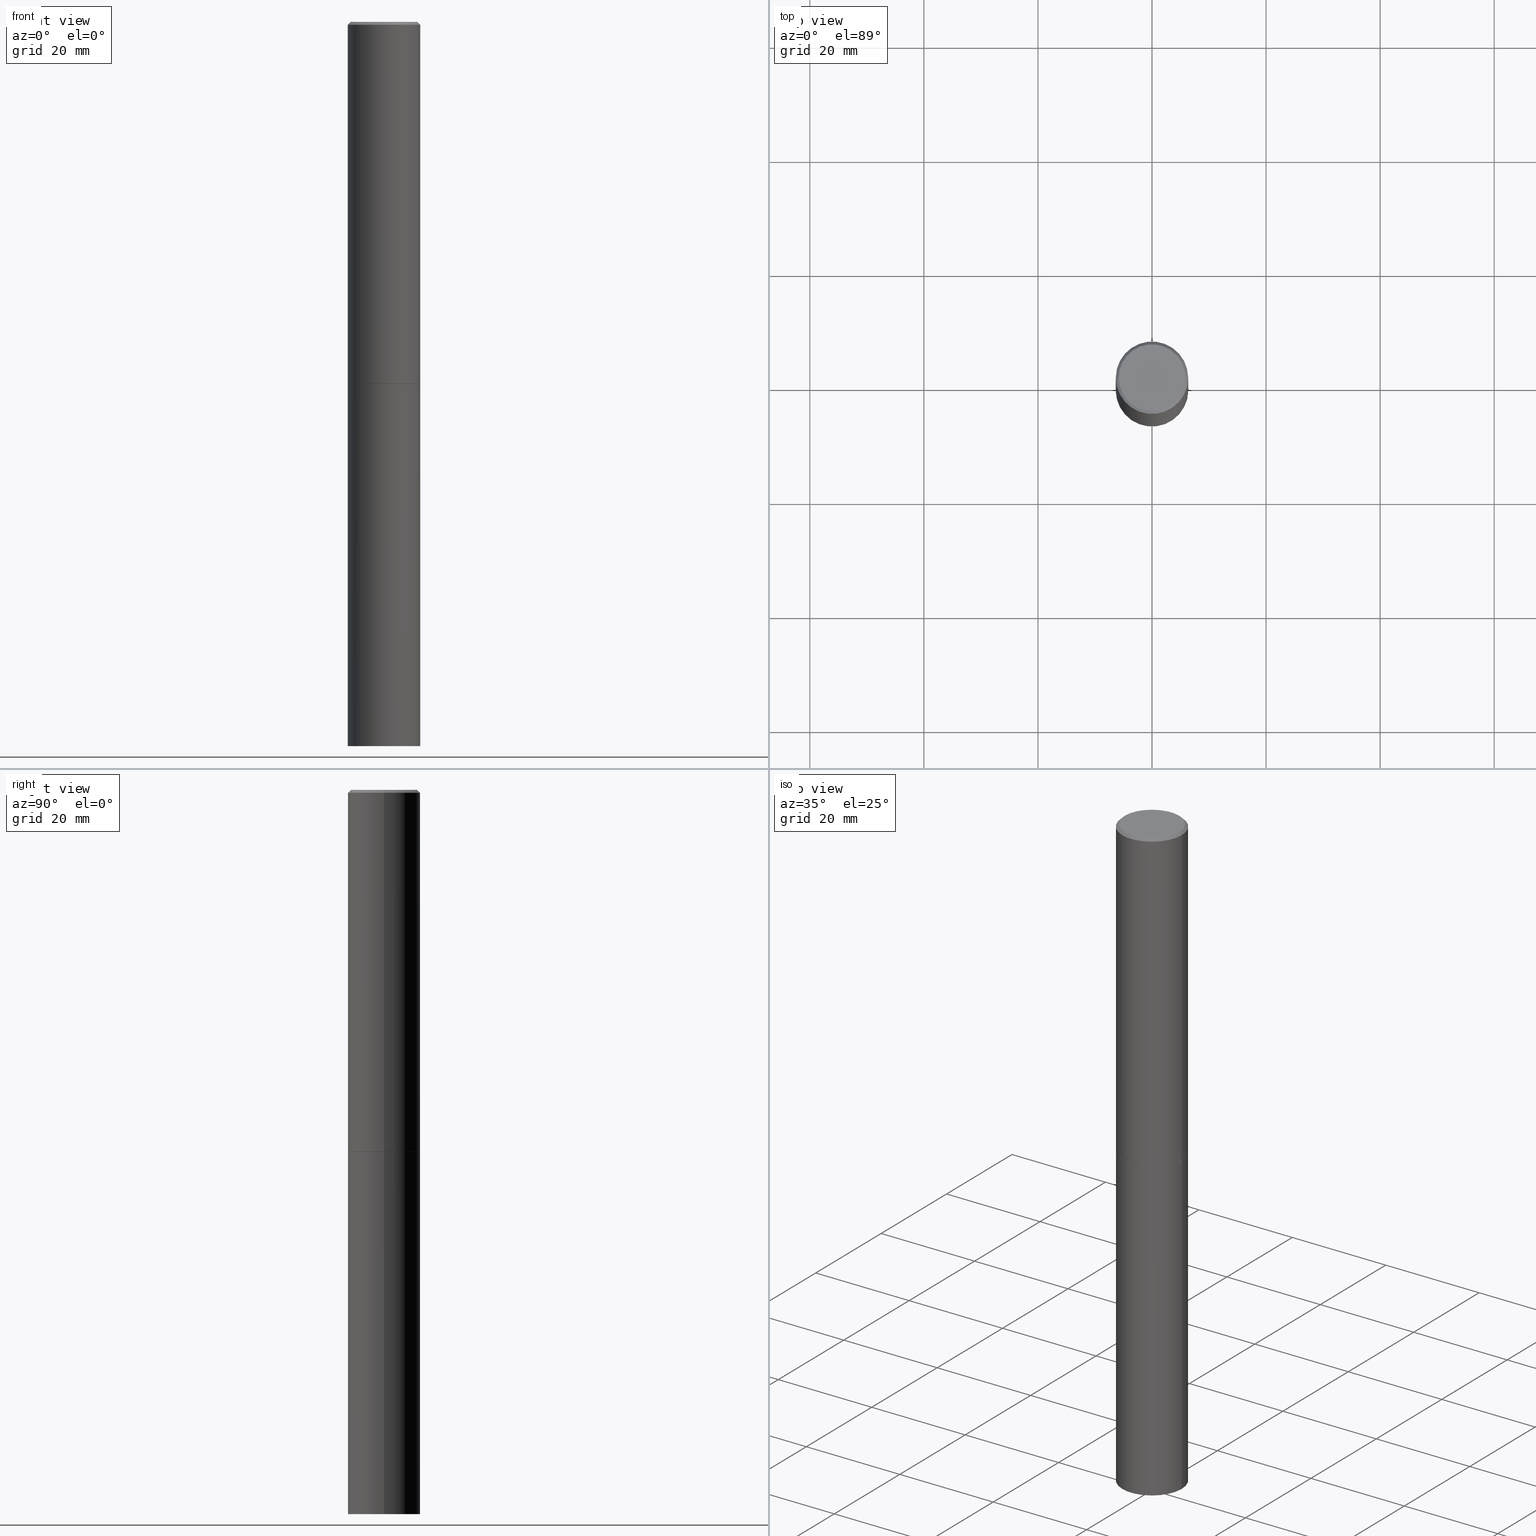
[diagram: canonical four-view strip — front | top / right | iso, engineering-drawing reading convention]
A machine part, canonical four-view strip (front | top / right | iso — engineering-drawing reading convention). The complete STEP part file that produces these views, byte-faithful:
ISO-10303-21;
HEADER;
FILE_DESCRIPTION (( 'STEP AP203' ),
    '1' );
FILE_NAME ('34832.STEP',
    '2024-02-27T17:50:39',
    ( '' ),
    ( '' ),
    'SwSTEP 2.0',
    'SolidWorks 2023',
    '' );
FILE_SCHEMA (( 'CONFIG_CONTROL_DESIGN' ));
ENDSEC;

DATA;
#1 = LINE ( 'NONE', #81, #94 ) ;
#2 = DIRECTION ( 'NONE',  ( 1.000000000000000000, -6.982962677686266711E-15, 4.876225828469315047E-29 ) ) ;
#3 = DIRECTION ( 'NONE',  ( 1.000000000000000000, -6.982962677686262766E-15, 0.000000000000000000 ) ) ;
#4 = CIRCLE ( 'NONE', #336, 0.2499999999999997224 ) ;
#5 = DIRECTION ( 'NONE',  ( -2.445468806185136597E-29, 3.491481338843145583E-15, 1.000000000000000000 ) ) ;
#6 = CARTESIAN_POINT ( 'NONE',  ( 6.113672015462842613E-29, -8.728703347107864943E-15, -2.500000000000000000 ) ) ;
#7 = ADVANCED_FACE ( 'NONE', ( #217 ), #15, .T. ) ;
#8 = FACE_OUTER_BOUND ( 'NONE', #43, .T. ) ;
#9 = DIRECTION ( 'NONE',  ( -2.445468806185136597E-29, 3.491481338843145583E-15, 1.000000000000000000 ) ) ;
#10 = PERSON_AND_ORGANIZATION ( #101, #137 ) ;
#11 = EDGE_CURVE ( 'NONE', #13, #213, #365, .T. ) ;
#12 = VERTEX_POINT ( 'NONE', #16 ) ;
#13 = VERTEX_POINT ( 'NONE', #22 ) ;
#14 = DIRECTION ( 'NONE',  ( 0.000000000000000000, 0.000000000000000000, 1.000000000000000000 ) ) ;
#15 = CONICAL_SURFACE ( 'NONE', #360, 0.2499999999999997224, 0.7853981633974473908 ) ;
#16 = CARTESIAN_POINT ( 'NONE',  ( -0.2499999999999997224, 1.675911042644701605E-15, -0.02000000000000005593 ) ) ;
#17 = LOCAL_TIME ( 12, 50, 39.00000000000000000, #219 ) ;
#18 = PERSON_AND_ORGANIZATION ( #101, #137 ) ;
#19 = DIRECTION ( 'NONE',  ( -2.445468806185136597E-29, 3.491481338843145583E-15, 1.000000000000000000 ) ) ;
#20 = PERSON_AND_ORGANIZATION ( #101, #137 ) ;
#21 = ORIENTED_EDGE ( 'NONE', *, *, #312, .F. ) ;
#22 = CARTESIAN_POINT ( 'NONE',  ( 0.2500000000000000000, -1.047095253519058861E-14, -2.499000000000000110 ) ) ;
#23 = FACE_OUTER_BOUND ( 'NONE', #196, .T. ) ;
#24 = DIRECTION ( 'NONE',  ( -1.000000000000000000, 6.982962677686265922E-15, -4.876176775795935793E-29 ) ) ;
#25 = DIRECTION ( 'NONE',  ( 1.000000000000000000, -6.982962677686266711E-15, 4.876176775795935793E-29 ) ) ;
#26 = VERTEX_POINT ( 'NONE', #359 ) ;
#27 = DIRECTION ( 'NONE',  ( 1.000000000000000000, -6.982962677686262766E-15, 0.000000000000000000 ) ) ;
#28 = ADVANCED_BREP_SHAPE_REPRESENTATION ( '34832', ( #105, #346, #30 ), #145 ) ;
#29 = CARTESIAN_POINT ( 'NONE',  ( 0.000000000000000000, 0.000000000000000000, 0.000000000000000000 ) ) ;
#30 = AXIS2_PLACEMENT_3D ( 'NONE', #143, #14, #326 ) ;
#31 = CARTESIAN_POINT ( 'NONE',  ( 0.2500000000000000000, -1.745740669421566678E-15, 1.219044193948983948E-29 ) ) ;
#32 = ADVANCED_FACE ( 'NONE', ( #220 ), #126, .T. ) ;
#33 = EDGE_LOOP ( 'NONE', ( #181, #52, #69, #309 ) ) ;
#34 = EDGE_CURVE ( 'NONE', #73, #54, #215, .T. ) ;
#35 = AXIS2_PLACEMENT_3D ( 'NONE', #307, #226, #194 ) ;
#36 = DIRECTION ( 'NONE',  ( -2.445468806185136597E-29, 3.491481338843145583E-15, 1.000000000000000000 ) ) ;
#37 = LOCAL_TIME ( 12, 50, 39.00000000000000000, #185 ) ;
#38 = VERTEX_POINT ( 'NONE', #331 ) ;
#39 = APPROVAL_DATE_TIME ( #233, #109 ) ;
#40 = VERTEX_POINT ( 'NONE', #189 ) ;
#41 = PERSON_AND_ORGANIZATION_ROLE ( 'classification_officer' ) ;
#42 = AXIS2_PLACEMENT_3D ( 'NONE', #110, #140, #338 ) ;
#43 = EDGE_LOOP ( 'NONE', ( #349, #264, #321, #46 ) ) ;
#44 = PERSON_AND_ORGANIZATION ( #101, #137 ) ;
#45 = EDGE_LOOP ( 'NONE', ( #172, #296, #290, #71 ) ) ;
#46 = ORIENTED_EDGE ( 'NONE', *, *, #337, .F. ) ;
#47 = ADVANCED_FACE ( 'NONE', ( #303 ), #243, .F. ) ;
#48 = CYLINDRICAL_SURFACE ( 'NONE', #235, 0.2500000000000000000 ) ;
#49 = CIRCLE ( 'NONE', #75, 0.2500000000000000000 ) ;
#50 = CARTESIAN_POINT ( 'NONE',  ( 0.2299999999999997047, -1.681434332853597236E-15, 4.268512490111905999E-18 ) ) ;
#51 = CARTESIAN_POINT ( 'NONE',  ( 1.745740669421688754E-15, 0.2499999999999825417, -5.000000000000000888 ) ) ;
#52 = ORIENTED_EDGE ( 'NONE', *, *, #337, .T. ) ;
#53 = CARTESIAN_POINT ( 'NONE',  ( -1.043851414335219820E-46, 1.490343170380447200E-32, 4.268512490100411279E-18 ) ) ;
#54 = VERTEX_POINT ( 'NONE', #363 ) ;
#55 = DIRECTION ( 'NONE',  ( 1.000000000000000000, -6.982962677686266711E-15, 4.876176775795935793E-29 ) ) ;
#56 = DIRECTION ( 'NONE',  ( -2.445468806185136597E-29, 3.491481338843145583E-15, 1.000000000000000000 ) ) ;
#57 = EDGE_CURVE ( 'NONE', #13, #38, #1, .T. ) ;
#58 = DIRECTION ( 'NONE',  ( -2.445468806185136597E-29, 3.491481338843145583E-15, 1.000000000000000000 ) ) ;
#59 = CONICAL_SURFACE ( 'NONE', #125, 0.2489999999999999991, 0.7853981633975507526 ) ;
#60 = VECTOR ( 'NONE', #206, 39.37007874015748143 ) ;
#61 = LINE ( 'NONE', #319, #256 ) ;
#62 = CARTESIAN_POINT ( 'NONE',  ( 0.2500000000000000000, -1.920314736363729656E-14, -5.000000000000000000 ) ) ;
#63 = ORIENTED_EDGE ( 'NONE', *, *, #253, .T. ) ;
#64 = PLANE ( 'NONE',  #164 ) ;
#65 = EDGE_LOOP ( 'NONE', ( #148, #231, #240, #93 ) ) ;
#66 = CIRCLE ( 'NONE', #298, 0.2500000000000000000 ) ;
#67 = PERSON_AND_ORGANIZATION ( #101, #137 ) ;
#68 = LOCAL_TIME ( 12, 50, 39.00000000000000000, #352 ) ;
#69 = ORIENTED_EDGE ( 'NONE', *, *, #57, .T. ) ;
#70 = COORDINATED_UNIVERSAL_TIME_OFFSET ( 5, 0, .BEHIND. ) ;
#71 = ORIENTED_EDGE ( 'NONE', *, *, #209, .T. ) ;
#72 = APPROVAL ( #214, 'UNSPECIFIED' ) ;
#73 = VERTEX_POINT ( 'NONE', #85 ) ;
#74 = AXIS2_PLACEMENT_3D ( 'NONE', #221, #249, #2 ) ;
#75 = AXIS2_PLACEMENT_3D ( 'NONE', #288, #58, #173 ) ;
#76 = ORIENTED_EDGE ( 'NONE', *, *, #317, .T. ) ;
#77 = PERSON_AND_ORGANIZATION_ROLE ( 'design_owner' ) ;
#78 = CARTESIAN_POINT ( 'NONE',  ( 6.111226546656657010E-29, -8.725211865769021935E-15, -2.499000000000000110 ) ) ;
#79 = EDGE_CURVE ( 'NONE', #40, #54, #342, .T. ) ;
#80 = DIRECTION ( 'NONE',  ( 0.7071067811866199593, -2.468850131083015945E-15, 0.7071067811864750752 ) ) ;
#81 = CARTESIAN_POINT ( 'NONE',  ( 0.2499999999999998612, -1.745740669421565692E-15, 1.219044193948983248E-29 ) ) ;
#82 = VECTOR ( 'NONE', #80, 39.37007874015748143 ) ;
#83 = CC_DESIGN_SECURITY_CLASSIFICATION ( #322, ( #257 ) ) ;
#84 = CARTESIAN_POINT ( 'NONE',  ( 0.000000000000000000, 0.000000000000000000, 0.000000000000000000 ) ) ;
#85 = CARTESIAN_POINT ( 'NONE',  ( -0.2500000000000000000, -1.131669818126154695E-14, -5.000000000000000000 ) ) ;
#86 = ORIENTED_EDGE ( 'NONE', *, *, #222, .T. ) ;
#87 = CARTESIAN_POINT ( 'NONE',  ( 1.606081415867839095E-15, 0.2299999999999997047, -8.009064516888722925E-16 ) ) ;
#88 = AXIS2_PLACEMENT_3D ( 'NONE', #245, #135, #161 ) ;
#89 = DIRECTION ( 'NONE',  ( 1.000000000000000000, -6.982962677686270655E-15, 0.000000000000000000 ) ) ;
#90 = DIRECTION ( 'NONE',  ( 1.000000000000000000, -6.982962677686262766E-15, 0.000000000000000000 ) ) ;
#91 =( LENGTH_UNIT ( ) NAMED_UNIT ( * ) SI_UNIT ( $, .METRE. ) );
#92 =( NAMED_UNIT ( * ) SI_UNIT ( $, .STERADIAN. ) SOLID_ANGLE_UNIT ( ) );
#93 = ORIENTED_EDGE ( 'NONE', *, *, #187, .F. ) ;
#94 = VECTOR ( 'NONE', #305, 39.37007874015748143 ) ;
#95 = EDGE_LOOP ( 'NONE', ( #198, #120, #165, #167 ) ) ;
#96 = EDGE_CURVE ( 'NONE', #26, #12, #306, .T. ) ;
#97 = SHAPE_DEFINITION_REPRESENTATION ( #276, #28 ) ;
#98 = ORIENTED_EDGE ( 'NONE', *, *, #332, .T. ) ;
#99 = DATE_AND_TIME ( #121, #273 ) ;
#100 = ORIENTED_EDGE ( 'NONE', *, *, #123, .T. ) ;
#101 = PERSON ( 'UNSPECIFIED', 'UNSPECIFIED', 'UNSPECIFIED', ('UNSPECIFIED'), ('UNSPECIFIED'), ('UNSPECIFIED') ) ;
#102 = CIRCLE ( 'NONE', #184, 0.2500000000000000000 ) ;
#103 = EDGE_LOOP ( 'NONE', ( #21, #149 ) ) ;
#104 = CARTESIAN_POINT ( 'NONE',  ( -0.2499999999999999722, -2.621163906872689391E-15, -2.499000000000000110 ) ) ;
#105 = MANIFOLD_SOLID_BREP ( 'Body-Move/Copy2[1]', #150 ) ;
#106 = LINE ( 'NONE', #277, #82 ) ;
#107 = FACE_OUTER_BOUND ( 'NONE', #95, .T. ) ;
#108 = CIRCLE ( 'NONE', #88, 0.2499999999999997224 ) ;
#109 = APPROVAL ( #294, 'UNSPECIFIED' ) ;
#110 = CARTESIAN_POINT ( 'NONE',  ( 4.890937612370287172E-31, -6.982962677686310098E-17, -0.02000000000000005593 ) ) ;
#111 = DIRECTION ( 'NONE',  ( -0.7071067811865469066, 2.468850131082250355E-15, -0.7071067811865481278 ) ) ;
#112 = CC_DESIGN_PERSON_AND_ORGANIZATION_ASSIGNMENT ( #10, #153, ( #257 ) ) ;
#113 = VECTOR ( 'NONE', #334, 39.37007874015748143 ) ;
#114 = DIRECTION ( 'NONE',  ( 1.000000000000000000, -6.982962677686266711E-15, 0.000000000000000000 ) ) ;
#115 = DIMENSIONAL_EXPONENTS ( 1.000000000000000000, 0.000000000000000000, 0.000000000000000000, 0.000000000000000000, 0.000000000000000000, 0.000000000000000000, 0.000000000000000000 ) ;
#116 = FACE_OUTER_BOUND ( 'NONE', #103, .T. ) ;
#117 = VECTOR ( 'NONE', #297, 39.37007874015748143 ) ;
#118 = APPROVAL_PERSON_ORGANIZATION ( #20, #155, #124 ) ;
#119 = DATE_TIME_ROLE ( 'classification_date' ) ;
#120 = ORIENTED_EDGE ( 'NONE', *, *, #284, .T. ) ;
#121 = CALENDAR_DATE ( 2024, 27, 2 ) ;
#122 = ORIENTED_EDGE ( 'NONE', *, *, #34, .T. ) ;
#123 = EDGE_CURVE ( 'NONE', #26, #130, #141, .T. ) ;
#124 = APPROVAL_ROLE ( '' ) ;
#125 = AXIS2_PLACEMENT_3D ( 'NONE', #347, #9, #229 ) ;
#126 = CYLINDRICAL_SURFACE ( 'NONE', #353, 0.2500000000000000000 ) ;
#127 = CALENDAR_DATE ( 2024, 27, 2 ) ;
#128 = VERTEX_POINT ( 'NONE', #274 ) ;
#129 = APPROVAL_ROLE ( '' ) ;
#130 = VERTEX_POINT ( 'NONE', #50 ) ;
#131 = ORIENTED_EDGE ( 'NONE', *, *, #222, .F. ) ;
#132 = DIRECTION ( 'NONE',  ( 2.438088387897960049E-29, -3.491481338843145188E-15, -1.000000000000000000 ) ) ;
#133 = FACE_OUTER_BOUND ( 'NONE', #318, .T. ) ;
#134 = CC_DESIGN_DATE_AND_TIME_ASSIGNMENT ( #263, #237, ( #266 ) ) ;
#135 = DIRECTION ( 'NONE',  ( -2.445468806185136597E-29, 3.491481338843145583E-15, 1.000000000000000000 ) ) ;
#136 = CIRCLE ( 'NONE', #74, 0.2299999999999997047 ) ;
#137 = ORGANIZATION ( 'UNSPECIFIED', 'UNSPECIFIED', '' ) ;
#138 = CARTESIAN_POINT ( 'NONE',  ( -0.2489999999999999991, -6.959451935065215486E-15, -2.500000000000000000 ) ) ;
#139 = ADVANCED_FACE ( 'NONE', ( #23 ), #163, .T. ) ;
#140 = DIRECTION ( 'NONE',  ( 2.445468806185136597E-29, -3.491481338843145583E-15, -1.000000000000000000 ) ) ;
#141 = CIRCLE ( 'NONE', #287, 0.2299999999999997047 ) ;
#142 = CARTESIAN_POINT ( 'NONE',  ( 6.113672015462842613E-29, -8.728703347107864943E-15, -2.500000000000000000 ) ) ;
#143 = CARTESIAN_POINT ( 'NONE',  ( 0.000000000000000000, 0.000000000000000000, 0.000000000000000000 ) ) ;
#144 = ADVANCED_FACE ( 'NONE', ( #224 ), #272, .T. ) ;
#145 =( GEOMETRIC_REPRESENTATION_CONTEXT ( 3 ) GLOBAL_UNCERTAINTY_ASSIGNED_CONTEXT ( ( #190 ) ) GLOBAL_UNIT_ASSIGNED_CONTEXT ( ( #285, #315, #92 ) ) REPRESENTATION_CONTEXT ( 'NONE', 'WORKASPACE' ) );
#146 = PERSON_AND_ORGANIZATION ( #101, #137 ) ;
#147 = PERSON_AND_ORGANIZATION ( #101, #137 ) ;
#148 = ORIENTED_EDGE ( 'NONE', *, *, #312, .T. ) ;
#149 = ORIENTED_EDGE ( 'NONE', *, *, #192, .F. ) ;
#150 = CLOSED_SHELL ( 'NONE', ( #176, #139, #47, #32 ) ) ;
#151 = APPROVAL_ROLE ( '' ) ;
#152 = ORIENTED_EDGE ( 'NONE', *, *, #79, .F. ) ;
#153 = PERSON_AND_ORGANIZATION_ROLE ( 'design_supplier' ) ;
#154 = DIRECTION ( 'NONE',  ( 1.000000000000000000, -6.982962677686266711E-15, 4.876176775795935793E-29 ) ) ;
#155 = APPROVAL ( #182, 'UNSPECIFIED' ) ;
#156 = ORIENTED_EDGE ( 'NONE', *, *, #295, .T. ) ;
#157 = CIRCLE ( 'NONE', #348, 0.2489999999999999991 ) ;
#158 = DIRECTION ( 'NONE',  ( -2.445468806185136597E-29, 3.491481338843145583E-15, 1.000000000000000000 ) ) ;
#159 = DESIGN_CONTEXT ( 'detailed design', #179, 'design' ) ;
#160 = CARTESIAN_POINT ( 'NONE',  ( 6.113672015462842613E-29, -8.728703347107864943E-15, -2.500000000000000000 ) ) ;
#161 = DIRECTION ( 'NONE',  ( 1.000000000000000000, -6.982962677686266711E-15, 0.000000000000000000 ) ) ;
#162 = ORIENTED_EDGE ( 'NONE', *, *, #341, .T. ) ;
#163 = PLANE ( 'NONE',  #227 ) ;
#164 = AXIS2_PLACEMENT_3D ( 'NONE', #6, #345, #251 ) ;
#165 = ORIENTED_EDGE ( 'NONE', *, *, #295, .F. ) ;
#166 = FACE_OUTER_BOUND ( 'NONE', #33, .T. ) ;
#167 = ORIENTED_EDGE ( 'NONE', *, *, #57, .F. ) ;
#168 = LINE ( 'NONE', #31, #193 ) ;
#169 = DIRECTION ( 'NONE',  ( -2.445468806185136597E-29, 3.491481338843145583E-15, 1.000000000000000000 ) ) ;
#170 = CC_DESIGN_DATE_AND_TIME_ASSIGNMENT ( #292, #119, ( #322 ) ) ;
#171 = DIRECTION ( 'NONE',  ( -2.445468806185136877E-29, 3.491481338843145188E-15, 1.000000000000000000 ) ) ;
#172 = ORIENTED_EDGE ( 'NONE', *, *, #332, .F. ) ;
#173 = DIRECTION ( 'NONE',  ( 1.000000000000000000, -6.982962677686266711E-15, 0.000000000000000000 ) ) ;
#174 = VECTOR ( 'NONE', #111, 39.37007874015748143 ) ;
#175 = AXIS2_PLACEMENT_3D ( 'NONE', #142, #36, #3 ) ;
#176 = ADVANCED_FACE ( 'NONE', ( #133 ), #48, .T. ) ;
#177 = CALENDAR_DATE ( 2024, 27, 2 ) ;
#178 = ORIENTED_EDGE ( 'NONE', *, *, #79, .T. ) ;
#179 = APPLICATION_CONTEXT ( 'configuration controlled 3d designs of mechanical parts and assemblies' ) ;
#180 = APPLICATION_PROTOCOL_DEFINITION ( 'international standard', 'config_control_design', 1994, #179 ) ;
#181 = ORIENTED_EDGE ( 'NONE', *, *, #284, .F. ) ;
#182 = APPROVAL_STATUS ( 'not_yet_approved' ) ;
#183 = CARTESIAN_POINT ( 'NONE',  ( -0.2500000000000000000, 1.776356839400250465E-15, -1.229733772563726445E-29 ) ) ;
#184 = AXIS2_PLACEMENT_3D ( 'NONE', #228, #169, #114 ) ;
#185 = COORDINATED_UNIVERSAL_TIME_OFFSET ( 5, 0, .BEHIND. ) ;
#186 = DIRECTION ( 'NONE',  ( -2.445468806185136597E-29, 3.491481338843145583E-15, 1.000000000000000000 ) ) ;
#187 = EDGE_CURVE ( 'NONE', #293, #13, #106, .T. ) ;
#188 = CALENDAR_DATE ( 2024, 27, 2 ) ;
#189 = CARTESIAN_POINT ( 'NONE',  ( 0.2500000000000000000, -1.047444401652943162E-14, -2.500000000000000000 ) ) ;
#190 = UNCERTAINTY_MEASURE_WITH_UNIT (LENGTH_MEASURE( 1.000000000000000082E-05 ), #285, 'distance_accuracy_value', 'NONE');
#191 = CARTESIAN_POINT ( 'NONE',  ( 1.745740669421627617E-15, 0.2499999999999912570, -2.500000000000001332 ) ) ;
#192 = EDGE_CURVE ( 'NONE', #128, #293, #335, .T. ) ;
#193 = VECTOR ( 'NONE', #291, 39.37007874015748143 ) ;
#194 = DIRECTION ( 'NONE',  ( 1.000000000000000000, -6.982962677686266711E-15, 0.000000000000000000 ) ) ;
#195 = DIRECTION ( 'NONE',  ( -1.000000000000000000, 6.982962677686265922E-15, -4.876176775795935793E-29 ) ) ;
#196 = EDGE_LOOP ( 'NONE', ( #260, #131 ) ) ;
#197 = PLANE ( 'NONE',  #328 ) ;
#198 = ORIENTED_EDGE ( 'NONE', *, *, #11, .T. ) ;
#199 = CYLINDRICAL_SURFACE ( 'NONE', #280, 0.2499999999999998612 ) ;
#200 = AXIS2_PLACEMENT_3D ( 'NONE', #78, #186, #301 ) ;
#201 = CC_DESIGN_PERSON_AND_ORGANIZATION_ASSIGNMENT ( #18, #77, ( #304 ) ) ;
#202 = LINE ( 'NONE', #255, #60 ) ;
#203 = APPLICATION_CONTEXT ( 'configuration controlled 3d designs of mechanical parts and assemblies' ) ;
#204 = CARTESIAN_POINT ( 'NONE',  ( 0.000000000000000000, 0.000000000000000000, 0.000000000000000000 ) ) ;
#205 = CC_DESIGN_PERSON_AND_ORGANIZATION_ASSIGNMENT ( #44, #300, ( #266 ) ) ;
#206 = DIRECTION ( 'NONE',  ( 0.7071067811865469066, -7.319954787623254468E-15, -0.7071067811865481278 ) ) ;
#207 = APPROVAL_PERSON_ORGANIZATION ( #147, #109, #151 ) ;
#208 = CARTESIAN_POINT ( 'NONE',  ( 4.890937612370287172E-31, -6.982962677686310098E-17, -0.02000000000000005593 ) ) ;
#209 = EDGE_CURVE ( 'NONE', #12, #38, #108, .T. ) ;
#210 = SECURITY_CLASSIFICATION_LEVEL ( 'unclassified' ) ;
#211 = DIRECTION ( 'NONE',  ( -1.000000000000000000, 6.982962677686266711E-15, 0.000000000000000000 ) ) ;
#212 = CC_DESIGN_APPROVAL ( #72, ( #257 ) ) ;
#213 = VERTEX_POINT ( 'NONE', #104 ) ;
#214 = APPROVAL_STATUS ( 'not_yet_approved' ) ;
#215 = LINE ( 'NONE', #183, #117 ) ;
#216 = PRODUCT_RELATED_PRODUCT_CATEGORY ( 'detail', '', ( #304 ) ) ;
#217 = FACE_OUTER_BOUND ( 'NONE', #45, .T. ) ;
#218 = AXIS2_PLACEMENT_3D ( 'NONE', #204, #5, #232 ) ;
#219 = COORDINATED_UNIVERSAL_TIME_OFFSET ( 5, 0, .BEHIND. ) ;
#220 = FACE_OUTER_BOUND ( 'NONE', #271, .T. ) ;
#221 = CARTESIAN_POINT ( 'NONE',  ( -1.043851414335219820E-46, 1.490343170380447200E-32, 4.268512490100411279E-18 ) ) ;
#222 = EDGE_CURVE ( 'NONE', #73, #354, #66, .T. ) ;
#223 = DIRECTION ( 'NONE',  ( -2.445468806185136597E-29, 3.491481338843145583E-15, 1.000000000000000000 ) ) ;
#224 = FACE_OUTER_BOUND ( 'NONE', #279, .T. ) ;
#225 = CARTESIAN_POINT ( 'NONE',  ( 1.222734403092568523E-28, -1.745740669421572989E-14, -5.000000000000000000 ) ) ;
#226 = DIRECTION ( 'NONE',  ( -2.445468806185136597E-29, 3.491481338843145583E-15, 1.000000000000000000 ) ) ;
#227 = AXIS2_PLACEMENT_3D ( 'NONE', #51, #132, #24 ) ;
#228 = CARTESIAN_POINT ( 'NONE',  ( 6.111226546656657010E-29, -8.725211865769021935E-15, -2.499000000000000110 ) ) ;
#229 = DIRECTION ( 'NONE',  ( 1.000000000000000000, -6.982962677686262766E-15, 0.000000000000000000 ) ) ;
#230 = CLOSED_SHELL ( 'NONE', ( #358, #258, #144, #7, #270, #351, #278, #244 ) ) ;
#231 = ORIENTED_EDGE ( 'NONE', *, *, #248, .T. ) ;
#232 = DIRECTION ( 'NONE',  ( 1.000000000000000000, -6.982962677686266711E-15, 4.876176775795935793E-29 ) ) ;
#233 = DATE_AND_TIME ( #259, #68 ) ;
#234 = ORIENTED_EDGE ( 'NONE', *, *, #253, .F. ) ;
#235 = AXIS2_PLACEMENT_3D ( 'NONE', #29, #282, #25 ) ;
#236 = AXIS2_PLACEMENT_3D ( 'NONE', #254, #286, #89 ) ;
#237 = DATE_TIME_ROLE ( 'creation_date' ) ;
#238 = CARTESIAN_POINT ( 'NONE',  ( 0.000000000000000000, 0.000000000000000000, 0.000000000000000000 ) ) ;
#239 = CC_DESIGN_PERSON_AND_ORGANIZATION_ASSIGNMENT ( #146, #41, ( #322 ) ) ;
#240 = ORIENTED_EDGE ( 'NONE', *, *, #11, .F. ) ;
#241 = PERSON_AND_ORGANIZATION ( #101, #137 ) ;
#242 = DIRECTION ( 'NONE',  ( 2.445468806185136597E-29, -3.491481338843145583E-15, -1.000000000000000000 ) ) ;
#243 = PLANE ( 'NONE',  #252 ) ;
#244 = ADVANCED_FACE ( 'NONE', ( #246 ), #197, .F. ) ;
#245 = CARTESIAN_POINT ( 'NONE',  ( 4.890937612370287172E-31, -6.982962677686310098E-17, -0.02000000000000005593 ) ) ;
#246 = FACE_OUTER_BOUND ( 'NONE', #325, .T. ) ;
#247 = DIRECTION ( 'NONE',  ( 1.000000000000000000, -6.982962677686270655E-15, 0.000000000000000000 ) ) ;
#248 = EDGE_CURVE ( 'NONE', #128, #213, #364, .T. ) ;
#249 = DIRECTION ( 'NONE',  ( -2.445468806185136597E-29, 3.491481338843145583E-15, 1.000000000000000000 ) ) ;
#250 = DIRECTION ( 'NONE',  ( -2.445468806185136597E-29, 3.491481338843145583E-15, 1.000000000000000000 ) ) ;
#251 = DIRECTION ( 'NONE',  ( 1.000000000000000000, -6.982962677686265922E-15, 4.876176775795935793E-29 ) ) ;
#252 = AXIS2_PLACEMENT_3D ( 'NONE', #191, #310, #195 ) ;
#253 = EDGE_CURVE ( 'NONE', #130, #26, #136, .T. ) ;
#254 = CARTESIAN_POINT ( 'NONE',  ( 1.222734403092568523E-28, -1.745740669421572989E-14, -5.000000000000000000 ) ) ;
#255 = CARTESIAN_POINT ( 'NONE',  ( 0.2499999999999997224, -1.784954126219744217E-15, -0.02000000000000005593 ) ) ;
#256 = VECTOR ( 'NONE', #171, 39.37007874015748143 ) ;
#257 = PRODUCT_DEFINITION_FORMATION_WITH_SPECIFIED_SOURCE ( 'ANY', '', #304, .NOT_KNOWN. ) ;
#258 = ADVANCED_FACE ( 'NONE', ( #107 ), #199, .T. ) ;
#259 = CALENDAR_DATE ( 2024, 27, 2 ) ;
#260 = ORIENTED_EDGE ( 'NONE', *, *, #317, .F. ) ;
#261 = MECHANICAL_CONTEXT ( 'NONE', #203, 'mechanical' ) ;
#262 = ORIENTED_EDGE ( 'NONE', *, *, #341, .F. ) ;
#263 = DATE_AND_TIME ( #188, #17 ) ;
#264 = ORIENTED_EDGE ( 'NONE', *, *, #192, .T. ) ;
#265 = AXIS2_PLACEMENT_3D ( 'NONE', #160, #275, #27 ) ;
#266 = PRODUCT_DEFINITION ( 'UNKNOWN', '', #257, #159 ) ;
#267 = PERSON_AND_ORGANIZATION_ROLE ( 'creator' ) ;
#268 = ORIENTED_EDGE ( 'NONE', *, *, #323, .F. ) ;
#269 = ORIENTED_EDGE ( 'NONE', *, *, #323, .T. ) ;
#270 = ADVANCED_FACE ( 'NONE', ( #166 ), #283, .T. ) ;
#271 = EDGE_LOOP ( 'NONE', ( #356, #86, #162, #268 ) ) ;
#272 = CONICAL_SURFACE ( 'NONE', #42, 0.2499999999999997224, 0.7853981633974473908 ) ;
#273 = LOCAL_TIME ( 12, 50, 39.00000000000000000, #70 ) ;
#274 = CARTESIAN_POINT ( 'NONE',  ( -0.2489999999999999991, -6.954153480716993873E-15, -2.500000000000000000 ) ) ;
#275 = DIRECTION ( 'NONE',  ( -2.445468806185136597E-29, 3.491481338843145583E-15, 1.000000000000000000 ) ) ;
#276 = PRODUCT_DEFINITION_SHAPE ( 'NONE', 'NONE',  #266 ) ;
#277 = CARTESIAN_POINT ( 'NONE',  ( 0.2489999999999999991, -1.046746105385174403E-14, -2.500000000000000000 ) ) ;
#278 = ADVANCED_FACE ( 'NONE', ( #116 ), #64, .F. ) ;
#279 = EDGE_LOOP ( 'NONE', ( #234, #98, #156, #357 ) ) ;
#280 = AXIS2_PLACEMENT_3D ( 'NONE', #84, #311, #55 ) ;
#281 = CONICAL_SURFACE ( 'NONE', #175, 0.2489999999999999991, 0.7853981633975507526 ) ;
#282 = DIRECTION ( 'NONE',  ( -2.445468806185136597E-29, 3.491481338843145583E-15, 1.000000000000000000 ) ) ;
#283 = CYLINDRICAL_SURFACE ( 'NONE', #218, 0.2499999999999998612 ) ;
#284 = EDGE_CURVE ( 'NONE', #213, #12, #61, .T. ) ;
#285 =( CONVERSION_BASED_UNIT ( 'INCH', #313 ) LENGTH_UNIT ( ) NAMED_UNIT ( #115 ) );
#286 = DIRECTION ( 'NONE',  ( -2.445468806185136597E-29, 3.491481338843145583E-15, 1.000000000000000000 ) ) ;
#287 = AXIS2_PLACEMENT_3D ( 'NONE', #53, #158, #340 ) ;
#288 = CARTESIAN_POINT ( 'NONE',  ( 6.113672015462842613E-29, -8.728703347107864943E-15, -2.500000000000000000 ) ) ;
#289 = FACE_OUTER_BOUND ( 'NONE', #65, .T. ) ;
#290 = ORIENTED_EDGE ( 'NONE', *, *, #96, .T. ) ;
#291 = DIRECTION ( 'NONE',  ( -2.445468806185136877E-29, 3.491481338843145188E-15, 1.000000000000000000 ) ) ;
#292 = DATE_AND_TIME ( #177, #361 ) ;
#293 = VERTEX_POINT ( 'NONE', #314 ) ;
#294 = APPROVAL_STATUS ( 'not_yet_approved' ) ;
#295 = EDGE_CURVE ( 'NONE', #38, #12, #4, .T. ) ;
#296 = ORIENTED_EDGE ( 'NONE', *, *, #123, .F. ) ;
#297 = DIRECTION ( 'NONE',  ( -2.445468806185136877E-29, 3.491481338843145188E-15, 1.000000000000000000 ) ) ;
#298 = AXIS2_PLACEMENT_3D ( 'NONE', #225, #223, #247 ) ;
#299 = CC_DESIGN_APPROVAL ( #109, ( #322 ) ) ;
#300 = PERSON_AND_ORGANIZATION_ROLE ( 'creator' ) ;
#301 = DIRECTION ( 'NONE',  ( 1.000000000000000000, -6.982962677686266711E-15, 0.000000000000000000 ) ) ;
#302 = DATE_AND_TIME ( #127, #37 ) ;
#303 = FACE_OUTER_BOUND ( 'NONE', #324, .T. ) ;
#304 = PRODUCT ( '34832', '34832', '', ( #261 ) ) ;
#305 = DIRECTION ( 'NONE',  ( -2.445468806185136877E-29, 3.491481338843145188E-15, 1.000000000000000000 ) ) ;
#306 = LINE ( 'NONE', #362, #174 ) ;
#307 = CARTESIAN_POINT ( 'NONE',  ( 6.113672015462842613E-29, -8.728703347107864943E-15, -2.500000000000000000 ) ) ;
#308 = CC_DESIGN_PERSON_AND_ORGANIZATION_ASSIGNMENT ( #241, #267, ( #257 ) ) ;
#309 = ORIENTED_EDGE ( 'NONE', *, *, #209, .F. ) ;
#310 = DIRECTION ( 'NONE',  ( 2.438088387897960049E-29, -3.491481338843145188E-15, -1.000000000000000000 ) ) ;
#311 = DIRECTION ( 'NONE',  ( -2.445468806185136597E-29, 3.491481338843145583E-15, 1.000000000000000000 ) ) ;
#312 = EDGE_CURVE ( 'NONE', #293, #128, #157, .T. ) ;
#313 = LENGTH_MEASURE_WITH_UNIT ( LENGTH_MEASURE( 0.02539999999999999897 ), #91 );
#314 = CARTESIAN_POINT ( 'NONE',  ( 0.2489999999999999991, -1.046746105385174403E-14, -2.500000000000000000 ) ) ;
#315 =( NAMED_UNIT ( * ) PLANE_ANGLE_UNIT ( ) SI_UNIT ( $, .RADIAN. ) );
#316 = CARTESIAN_POINT ( 'NONE',  ( 6.113672015462842613E-29, -8.728703347107864943E-15, -2.500000000000000000 ) ) ;
#317 = EDGE_CURVE ( 'NONE', #354, #73, #343, .T. ) ;
#318 = EDGE_LOOP ( 'NONE', ( #76, #122, #152, #262 ) ) ;
#319 = CARTESIAN_POINT ( 'NONE',  ( -0.2499999999999998612, 1.776356839400249479E-15, -1.229733772563725745E-29 ) ) ;
#320 = APPROVAL_DATE_TIME ( #302, #155 ) ;
#321 = ORIENTED_EDGE ( 'NONE', *, *, #187, .T. ) ;
#322 = SECURITY_CLASSIFICATION ( '', '', #210 ) ;
#323 = EDGE_CURVE ( 'NONE', #54, #40, #49, .T. ) ;
#324 = EDGE_LOOP ( 'NONE', ( #178, #269 ) ) ;
#325 = EDGE_LOOP ( 'NONE', ( #100, #63 ) ) ;
#326 = DIRECTION ( 'NONE',  ( 1.000000000000000000, 0.000000000000000000, 0.000000000000000000 ) ) ;
#327 = CARTESIAN_POINT ( 'NONE',  ( 4.890937612370287172E-31, -6.982962677686310098E-17, -0.02000000000000005593 ) ) ;
#328 = AXIS2_PLACEMENT_3D ( 'NONE', #87, #339, #333 ) ;
#329 = CC_DESIGN_APPROVAL ( #155, ( #266 ) ) ;
#330 = APPROVAL_DATE_TIME ( #99, #72 ) ;
#331 = CARTESIAN_POINT ( 'NONE',  ( 0.2499999999999997224, -1.784954126219744217E-15, -0.02000000000000005593 ) ) ;
#332 = EDGE_CURVE ( 'NONE', #130, #38, #202, .T. ) ;
#333 = DIRECTION ( 'NONE',  ( -1.000000000000000000, 6.982962677686265922E-15, -4.876176775795935793E-29 ) ) ;
#334 = DIRECTION ( 'NONE',  ( -0.7071067811866199593, 7.493145998870616062E-15, 0.7071067811864750752 ) ) ;
#335 = CIRCLE ( 'NONE', #265, 0.2489999999999999991 ) ;
#336 = AXIS2_PLACEMENT_3D ( 'NONE', #208, #56, #350 ) ;
#337 = EDGE_CURVE ( 'NONE', #213, #13, #102, .T. ) ;
#338 = DIRECTION ( 'NONE',  ( -1.000000000000000000, 6.982962677686266711E-15, 0.000000000000000000 ) ) ;
#339 = DIRECTION ( 'NONE',  ( 2.438088387897960049E-29, -3.491481338843145188E-15, -1.000000000000000000 ) ) ;
#340 = DIRECTION ( 'NONE',  ( 1.000000000000000000, -6.982962677686266711E-15, 4.876225828469315047E-29 ) ) ;
#341 = EDGE_CURVE ( 'NONE', #354, #40, #168, .T. ) ;
#342 = CIRCLE ( 'NONE', #35, 0.2500000000000000000 ) ;
#343 = CIRCLE ( 'NONE', #236, 0.2500000000000000000 ) ;
#344 = APPLICATION_PROTOCOL_DEFINITION ( 'international standard', 'config_control_design', 1994, #203 ) ;
#345 = DIRECTION ( 'NONE',  ( -2.438088387897960049E-29, 3.491481338843145188E-15, 1.000000000000000000 ) ) ;
#346 = MANIFOLD_SOLID_BREP ( 'Body-Move/Copy2[2]', #230 ) ;
#347 = CARTESIAN_POINT ( 'NONE',  ( 6.113672015462842613E-29, -8.728703347107864943E-15, -2.500000000000000000 ) ) ;
#348 = AXIS2_PLACEMENT_3D ( 'NONE', #316, #250, #90 ) ;
#349 = ORIENTED_EDGE ( 'NONE', *, *, #248, .F. ) ;
#350 = DIRECTION ( 'NONE',  ( 1.000000000000000000, -6.982962677686266711E-15, 0.000000000000000000 ) ) ;
#351 = ADVANCED_FACE ( 'NONE', ( #8 ), #281, .T. ) ;
#352 = COORDINATED_UNIVERSAL_TIME_OFFSET ( 5, 0, .BEHIND. ) ;
#353 = AXIS2_PLACEMENT_3D ( 'NONE', #238, #19, #154 ) ;
#354 = VERTEX_POINT ( 'NONE', #62 ) ;
#355 = COORDINATED_UNIVERSAL_TIME_OFFSET ( 5, 0, .BEHIND. ) ;
#356 = ORIENTED_EDGE ( 'NONE', *, *, #34, .F. ) ;
#357 = ORIENTED_EDGE ( 'NONE', *, *, #96, .F. ) ;
#358 = ADVANCED_FACE ( 'NONE', ( #289 ), #59, .T. ) ;
#359 = CARTESIAN_POINT ( 'NONE',  ( -0.2299999999999997047, 1.640996229256270547E-15, 4.268512490089056766E-18 ) ) ;
#360 = AXIS2_PLACEMENT_3D ( 'NONE', #327, #242, #211 ) ;
#361 = LOCAL_TIME ( 12, 50, 39.00000000000000000, #355 ) ;
#362 = CARTESIAN_POINT ( 'NONE',  ( -0.2499999999999997224, 1.675911042644701605E-15, -0.02000000000000005593 ) ) ;
#363 = CARTESIAN_POINT ( 'NONE',  ( -0.2500000000000000000, -1.131669818126154695E-14, -2.500000000000000000 ) ) ;
#364 = LINE ( 'NONE', #138, #113 ) ;
#365 = CIRCLE ( 'NONE', #200, 0.2500000000000000000 ) ;
#366 = APPROVAL_PERSON_ORGANIZATION ( #67, #72, #129 ) ;
ENDSEC;
END-ISO-10303-21;
